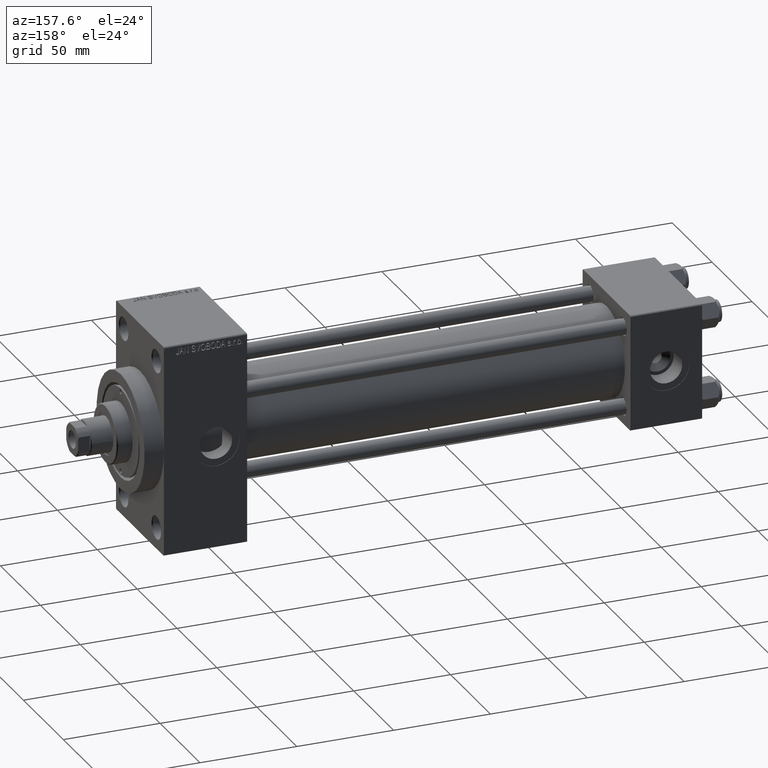
[diagram: clean part render]
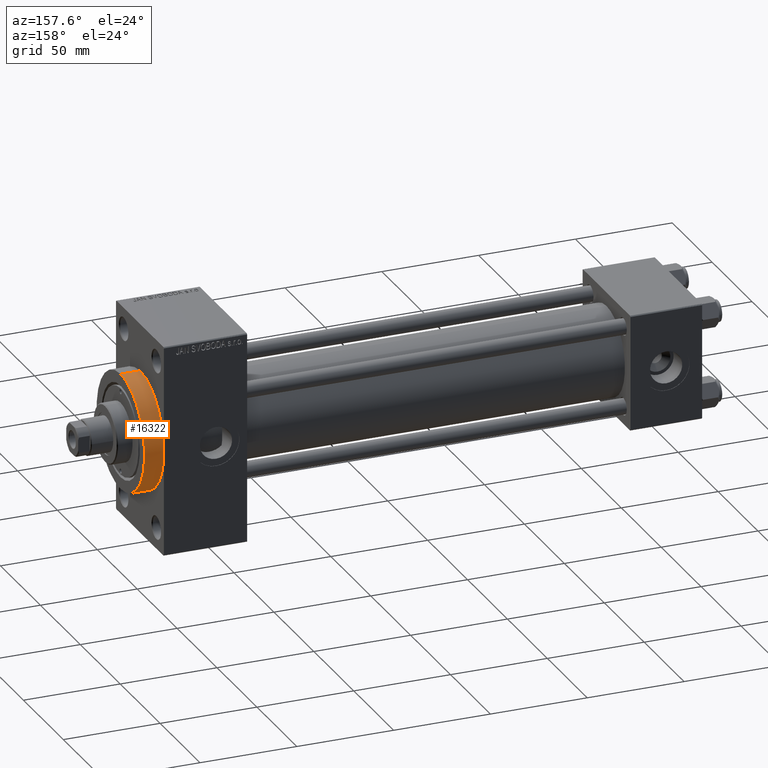
[diagram: same view with one face highlighted and labeled with its STEP entity id]
A machine part, auxiliary view. The second image highlights one B-rep face of the part: STEP entity #16322.
In plain terms, the highlighted cylindrical surface (partial cylindrical patch) has radius 30 mm, axis along (-1, -0, -0).
Its self-contained STEP definition (entity closure, byte-faithful):
#1501 = AXIS2_PLACEMENT_3D ( 'NONE', #7979, #3994, #38052 ) ;
#3403 = VERTEX_POINT ( 'NONE', #29284 ) ;
#3994 = DIRECTION ( 'NONE',  ( 1.000000000000000000, 0.000000000000000000, 0.000000000000000000 ) ) ;
#4238 = DIRECTION ( 'NONE',  ( -1.000000000000000000, -0.000000000000000000, -0.000000000000000000 ) ) ;
#4608 = AXIS2_PLACEMENT_3D ( 'NONE', #48690, #36249, #44225 ) ;
#6639 = ORIENTED_EDGE ( 'NONE', *, *, #10754, .T. ) ;
#6704 = LINE ( 'NONE', #40763, #34942 ) ;
#7979 = CARTESIAN_POINT ( 'NONE',  ( 288.0000000000000568, 0.000000000000000000, 0.000000000000000000 ) ) ;
#8528 = CARTESIAN_POINT ( 'NONE',  ( 278.0000000000000000, 0.000000000000000000, 30.00000000000000000 ) ) ;
#10189 = CARTESIAN_POINT ( 'NONE',  ( 278.0000000000000000, 0.000000000000000000, 0.000000000000000000 ) ) ;
#10754 = EDGE_CURVE ( 'NONE', #43184, #3403, #42050, .T. ) ;
#12129 = VERTEX_POINT ( 'NONE', #26172 ) ;
#14158 = DIRECTION ( 'NONE',  ( 0.000000000000000000, 0.000000000000000000, -1.000000000000000000 ) ) ;
#15716 = AXIS2_PLACEMENT_3D ( 'NONE', #10189, #48213, #14158 ) ;
#15855 = ORIENTED_EDGE ( 'NONE', *, *, #28661, .T. ) ;
#16322 = ADVANCED_FACE ( 'NONE', ( #41765 ), #18889, .T. ) ;
#17879 = DIRECTION ( 'NONE',  ( -1.000000000000000000, -0.000000000000000000, -0.000000000000000000 ) ) ;
#18394 = DIRECTION ( 'NONE',  ( 0.000000000000000000, 0.000000000000000000, 1.000000000000000000 ) ) ;
#18889 = CYLINDRICAL_SURFACE ( 'NONE', #26070, 30.00000000000000000 ) ;
#19753 = CIRCLE ( 'NONE', #1501, 30.00000000000000000 ) ;
#25138 = VECTOR ( 'NONE', #4238, 1000.000000000000000 ) ;
#26070 = AXIS2_PLACEMENT_3D ( 'NONE', #37045, #26112, #18394 ) ;
#26112 = DIRECTION ( 'NONE',  ( -1.000000000000000000, -0.000000000000000000, -0.000000000000000000 ) ) ;
#26172 = CARTESIAN_POINT ( 'NONE',  ( 288.0000000000000568, 0.000000000000000000, 30.00000000000000000 ) ) ;
#26875 = CIRCLE ( 'NONE', #4608, 30.00000000000000000 ) ;
#27503 = EDGE_CURVE ( 'NONE', #46475, #39900, #30802, .T. ) ;
#28661 = EDGE_CURVE ( 'NONE', #3403, #46475, #26875, .T. ) ;
#29284 = CARTESIAN_POINT ( 'NONE',  ( 278.0000000000000000, 3.673940397442059178E-15, -30.00000000000000000 ) ) ;
#30395 = EDGE_CURVE ( 'NONE', #43184, #12129, #19753, .T. ) ;
#30802 = CIRCLE ( 'NONE', #15716, 30.00000000000000000 ) ;
#34942 = VECTOR ( 'NONE', #17879, 1000.000000000000000 ) ;
#34999 = CARTESIAN_POINT ( 'NONE',  ( 278.0000000000000000, 30.00000000000000000, 0.000000000000000000 ) ) ;
#35779 = EDGE_LOOP ( 'NONE', ( #39118, #6639, #15855, #42147, #37933 ) ) ;
#36249 = DIRECTION ( 'NONE',  ( 1.000000000000000000, 0.000000000000000000, 0.000000000000000000 ) ) ;
#36790 = EDGE_CURVE ( 'NONE', #12129, #39900, #6704, .T. ) ;
#37045 = CARTESIAN_POINT ( 'NONE',  ( 288.0000000000000568, 0.000000000000000000, 0.000000000000000000 ) ) ;
#37933 = ORIENTED_EDGE ( 'NONE', *, *, #36790, .F. ) ;
#38052 = DIRECTION ( 'NONE',  ( 0.000000000000000000, 0.000000000000000000, -1.000000000000000000 ) ) ;
#39118 = ORIENTED_EDGE ( 'NONE', *, *, #30395, .F. ) ;
#39900 = VERTEX_POINT ( 'NONE', #8528 ) ;
#39969 = CARTESIAN_POINT ( 'NONE',  ( 288.0000000000000568, 3.673940397442059178E-15, -30.00000000000000000 ) ) ;
#40763 = CARTESIAN_POINT ( 'NONE',  ( 288.0000000000000568, 0.000000000000000000, 30.00000000000000000 ) ) ;
#41765 = FACE_OUTER_BOUND ( 'NONE', #35779, .T. ) ;
#42050 = LINE ( 'NONE', #46487, #25138 ) ;
#42147 = ORIENTED_EDGE ( 'NONE', *, *, #27503, .T. ) ;
#43184 = VERTEX_POINT ( 'NONE', #39969 ) ;
#44225 = DIRECTION ( 'NONE',  ( 0.000000000000000000, 0.000000000000000000, -1.000000000000000000 ) ) ;
#46475 = VERTEX_POINT ( 'NONE', #34999 ) ;
#46487 = CARTESIAN_POINT ( 'NONE',  ( 288.0000000000000568, 3.673940397442059178E-15, -30.00000000000000000 ) ) ;
#48213 = DIRECTION ( 'NONE',  ( 1.000000000000000000, 0.000000000000000000, 0.000000000000000000 ) ) ;
#48690 = CARTESIAN_POINT ( 'NONE',  ( 278.0000000000000000, 0.000000000000000000, 0.000000000000000000 ) ) ;